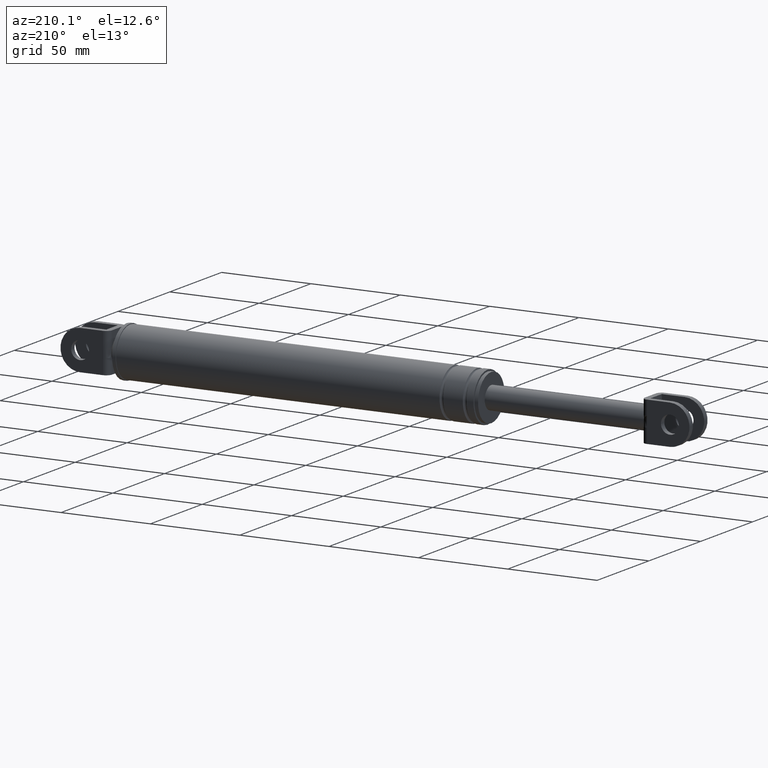
[diagram: clean part render]
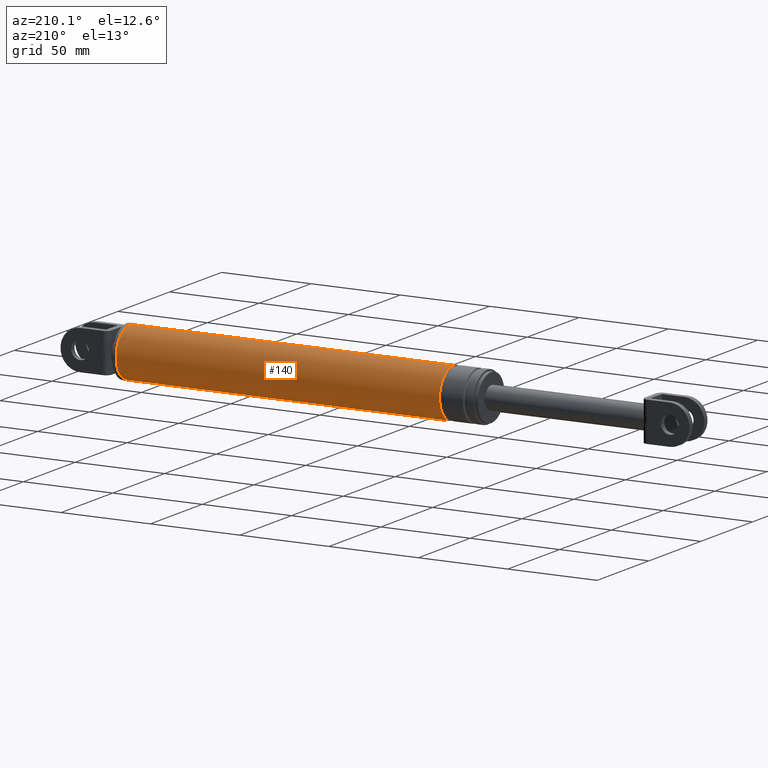
[diagram: same view with one face highlighted and labeled with its STEP entity id]
A machine part, auxiliary view. The second image highlights one B-rep face of the part: STEP entity #140.
In plain terms, the highlighted cylindrical surface (edge-blend (fillet) strip) has radius 13.7 mm, axis along (-1, -0, -0).
Its self-contained STEP definition (entity closure, byte-faithful):
#140=ADVANCED_FACE('',(#463),#462,.T.);
#462=CYLINDRICAL_SURFACE('',#1395,1.37000000000E+001);
#463=FACE_OUTER_BOUND('',#1396,.T.);
#1392=CARTESIAN_POINT('',(1.65174045421E+002,-2.64840268503E-013,1.90372912185E+002));
#1393=DIRECTION('',(-1.00000000000E+000,-1.46694769862E-015,-1.25720656612E-029));
#1394=DIRECTION('',(1.57860965566E-029,-1.93314064601E-014,1.00000000000E+000));
#1395=AXIS2_PLACEMENT_3D('',#1392,#1393,#1394);
#1396=EDGE_LOOP('',(#2069,#2070,#2071,#2072));
#2069=ORIENTED_EDGE('',*,*,#2315,.F.);
#2070=ORIENTED_EDGE('',*,*,#2316,.F.);
#2071=ORIENTED_EDGE('',*,*,#2286,.T.);
#2072=ORIENTED_EDGE('',*,*,#2317,.T.);
#2286=EDGE_CURVE('',#2704,#2705,#2706,.T.);
#2315=EDGE_CURVE('',#2891,#2892,#2893,.T.);
#2316=EDGE_CURVE('',#2704,#2891,#2899,.T.);
#2317=EDGE_CURVE('',#2705,#2892,#2905,.T.);
#2704=VERTEX_POINT('',#3643);
#2705=VERTEX_POINT('',#3644);
#2706=CIRCLE('',#3648,1.37000000000E+001);
#2891=VERTEX_POINT('',#3747);
#2892=VERTEX_POINT('',#3748);
#2893=CIRCLE('',#3752,1.37000000000E+001);
#2899=(BOUNDED_CURVE() B_SPLINE_CURVE(1,(#3753,#3754),.UNSPECIFIED.,.F.,.F.) B_SPLINE_CURVE_WITH_KNOTS((2,2),(4.97512439266E-002,9.50248756248E-001),.UNSPECIFIED.) CURVE() GEOMETRIC_REPRESENTATION_ITEM() RATIONAL_B_SPLINE_CURVE((1.00000000000E+000,1.00000000000E+000)) REPRESENTATION_ITEM('') );
#2905=(BOUNDED_CURVE() B_SPLINE_CURVE(1,(#3755,#3756),.UNSPECIFIED.,.F.,.F.) B_SPLINE_CURVE_WITH_KNOTS((2,2),(4.97512437811E-002,9.50248756219E-001),.UNSPECIFIED.) CURVE() GEOMETRIC_REPRESENTATION_ITEM() RATIONAL_B_SPLINE_CURVE((7.50000000000E-001,7.50000000000E-001)) REPRESENTATION_ITEM('') );
#3643=CARTESIAN_POINT('',(3.56174045421E+002,-1.71714494475E-013,2.04072912185E+002));
#3644=CARTESIAN_POINT('',(3.56174045421E+002,3.05618015870E-015,1.76672912185E+002));
#3645=CARTESIAN_POINT('',(3.56174045421E+002,-8.83679421621E-014,1.90372912185E+002));
#3646=DIRECTION('',(-1.00000000000E+000,0.00000000000E+000,0.00000000000E+000));
#3647=DIRECTION('',(-0.00000000000E+000,6.10674375483E-015,-1.00000000000E+000));
#3648=AXIS2_PLACEMENT_3D('',#3645,#3646,#3647);
#3747=CARTESIAN_POINT('',(1.75174045421E+002,-1.45661260831E-013,2.04072912185E+002));
#3748=CARTESIAN_POINT('',(1.75174045421E+002,-2.27956466033E-014,1.76672912185E+002));
#3749=CARTESIAN_POINT('',(1.75174045421E+002,-8.91258111932E-014,1.90372912185E+002));
#3750=DIRECTION('',(-1.00000000000E+000,-7.33473849312E-016,4.68181714455E-030));
#3751=DIRECTION('',(-7.81746773248E-030,4.27506800805E-015,-1.00000000000E+000));
#3752=AXIS2_PLACEMENT_3D('',#3749,#3750,#3751);
#3753=CARTESIAN_POINT('',(3.56174045392E+002,-2.49493526613E-013,2.04072912185E+002));
#3754=CARTESIAN_POINT('',(1.75174045416E+002,-5.15011060029E-013,2.04072912185E+002));
#3755=CARTESIAN_POINT('',(3.56174045421E+002,2.80204825622E-013,1.76672912185E+002));
#3756=CARTESIAN_POINT('',(1.75174045421E+002,1.46704097184E-014,1.76672912185E+002));